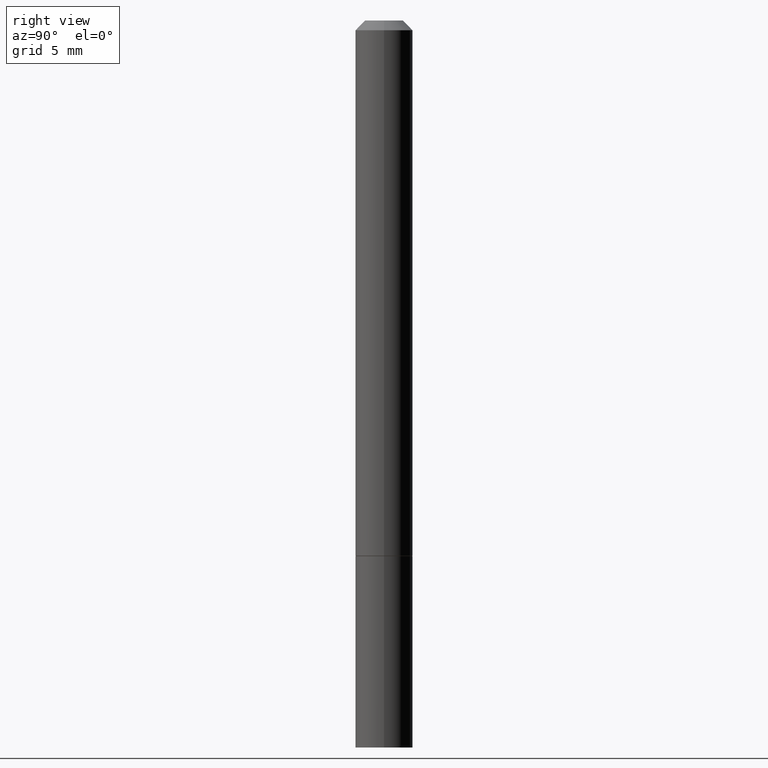
[diagram: clean part render]
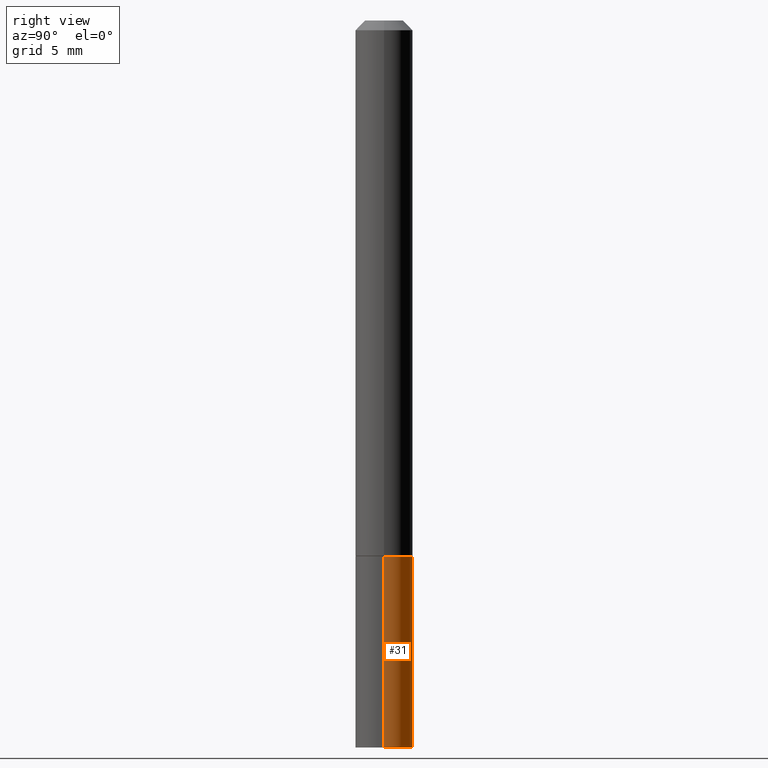
[diagram: same view with one face highlighted and labeled with its STEP entity id]
A machine part, right view. The second image highlights one B-rep face of the part: STEP entity #31.
In plain terms, the highlighted cylindrical surface (edge-blend (fillet) strip) has radius 1.4999 mm, axis along (-0, 0, 1).
Its self-contained STEP definition (entity closure, byte-faithful):
#7 = LINE ( 'NONE', #247, #289 ) ;
#10 = ORIENTED_EDGE ( 'NONE', *, *, #313, .F. ) ;
#21 = DIRECTION ( 'NONE',  ( 1.000000000000000000, -6.982962677686266711E-15, 4.876176775795935793E-29 ) ) ;
#31 = ADVANCED_FACE ( 'NONE', ( #336 ), #314, .T. ) ;
#32 = AXIS2_PLACEMENT_3D ( 'NONE', #265, #291, #362 ) ;
#39 = EDGE_LOOP ( 'NONE', ( #164, #128, #10, #306 ) ) ;
#50 = CARTESIAN_POINT ( 'NONE',  ( 0.000000000000000000, 0.000000000000000000, 0.000000000000000000 ) ) ;
#54 = CIRCLE ( 'NONE', #175, 0.05905000000000001914 ) ;
#61 = EDGE_CURVE ( 'NONE', #288, #169, #154, .T. ) ;
#69 = CARTESIAN_POINT ( 'NONE',  ( -0.05905000000000001914, -4.116731644025616996E-15, -1.496099999999999985 ) ) ;
#116 = CARTESIAN_POINT ( 'NONE',  ( 2.695884811938494470E-29, -3.849009027940684107E-15, -1.102400000000000047 ) ) ;
#118 = VECTOR ( 'NONE', #271, 39.37007874015748143 ) ;
#128 = ORIENTED_EDGE ( 'NONE', *, *, #348, .T. ) ;
#129 = DIRECTION ( 'NONE',  ( -2.445468806185136877E-29, 3.491481338843145188E-15, 1.000000000000000000 ) ) ;
#136 = DIRECTION ( 'NONE',  ( -2.445468806185136597E-29, 3.491481338843145583E-15, 1.000000000000000000 ) ) ;
#148 = CARTESIAN_POINT ( 'NONE',  ( 0.05905000000000001914, -4.261352974058058239E-15, -1.102400000000000047 ) ) ;
#154 = CIRCLE ( 'NONE', #32, 0.05905000000000001914 ) ;
#164 = ORIENTED_EDGE ( 'NONE', *, *, #61, .T. ) ;
#169 = VERTEX_POINT ( 'NONE', #69 ) ;
#175 = AXIS2_PLACEMENT_3D ( 'NONE', #116, #136, #213 ) ;
#188 = AXIS2_PLACEMENT_3D ( 'NONE', #50, #287, #21 ) ;
#201 = VERTEX_POINT ( 'NONE', #258 ) ;
#213 = DIRECTION ( 'NONE',  ( 1.000000000000000000, -6.982962677686270655E-15, 0.000000000000000000 ) ) ;
#247 = CARTESIAN_POINT ( 'NONE',  ( 0.05905000000000001914, -4.123439461173741806E-16, 2.879382386107500921E-30 ) ) ;
#258 = CARTESIAN_POINT ( 'NONE',  ( -0.05905000000000001914, -4.116731644025616996E-15, -1.102400000000000047 ) ) ;
#265 = CARTESIAN_POINT ( 'NONE',  ( 3.658665880933582389E-29, -5.223605231043229660E-15, -1.496099999999999985 ) ) ;
#271 = DIRECTION ( 'NONE',  ( -2.445468806185136877E-29, 3.491481338843145188E-15, 1.000000000000000000 ) ) ;
#274 = VERTEX_POINT ( 'NONE', #148 ) ;
#287 = DIRECTION ( 'NONE',  ( -2.445468806185136597E-29, 3.491481338843145583E-15, 1.000000000000000000 ) ) ;
#288 = VERTEX_POINT ( 'NONE', #337 ) ;
#289 = VECTOR ( 'NONE', #129, 39.37007874015748143 ) ;
#291 = DIRECTION ( 'NONE',  ( -2.445468806185136597E-29, 3.491481338843145583E-15, 1.000000000000000000 ) ) ;
#299 = LINE ( 'NONE', #349, #118 ) ;
#306 = ORIENTED_EDGE ( 'NONE', *, *, #338, .F. ) ;
#313 = EDGE_CURVE ( 'NONE', #274, #201, #54, .T. ) ;
#314 = CYLINDRICAL_SURFACE ( 'NONE', #188, 0.05905000000000001914 ) ;
#336 = FACE_OUTER_BOUND ( 'NONE', #39, .T. ) ;
#337 = CARTESIAN_POINT ( 'NONE',  ( 0.05905000000000001914, -5.635949177160603791E-15, -1.496099999999999985 ) ) ;
#338 = EDGE_CURVE ( 'NONE', #288, #274, #7, .T. ) ;
#348 = EDGE_CURVE ( 'NONE', #169, #201, #299, .T. ) ;
#349 = CARTESIAN_POINT ( 'NONE',  ( -0.05905000000000001914, 4.195754854663392958E-16, -2.904631170795522943E-30 ) ) ;
#362 = DIRECTION ( 'NONE',  ( 1.000000000000000000, -6.982962677686270655E-15, 0.000000000000000000 ) ) ;